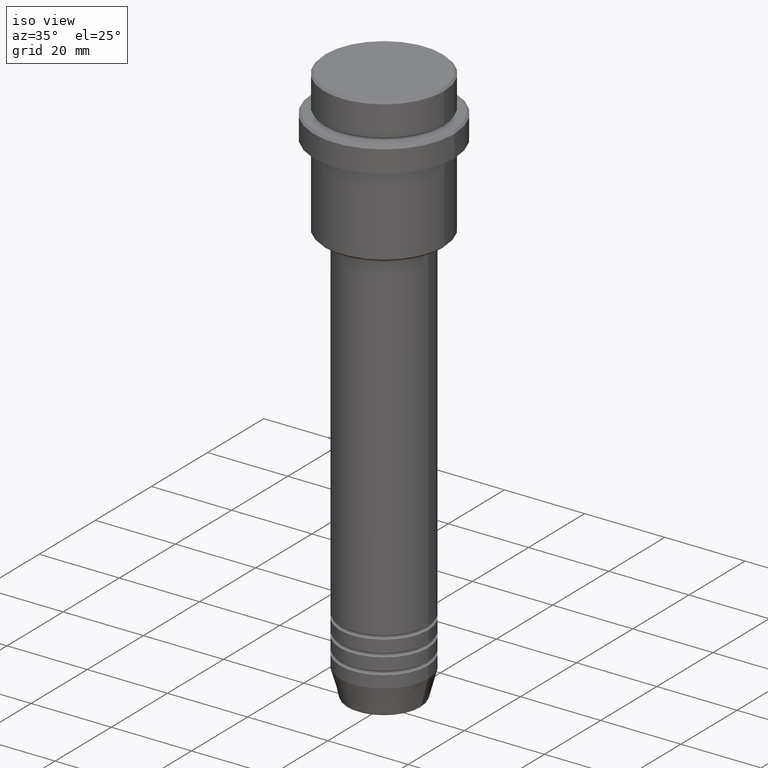
[diagram: clean part render]
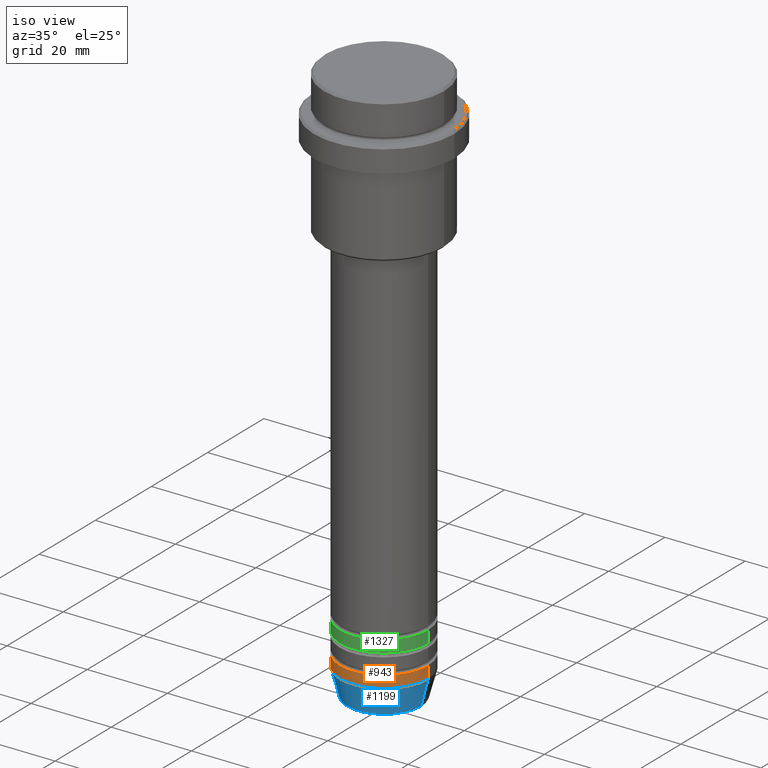
[diagram: same view with three faces highlighted in distinct colors, each labeled with its STEP entity id]
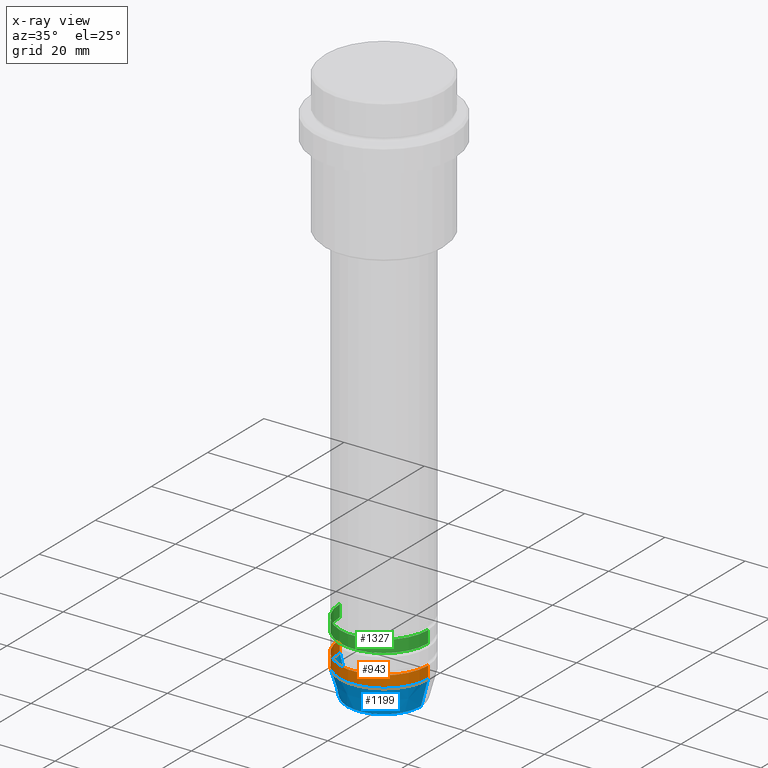
[diagram: x-ray of the same camera — body ghosted, the three highlighted faces saturated]
A machine part, iso view with three faces highlighted in distinct colors.
The next image is the same camera in x-ray (body ghosted, the three faces saturated) — at least one of them is partly hidden behind the body in this view.
Their STEP definitions:

[orange] entity #943 — the highlighted cylindrical surface (partial cylindrical patch) has radius 11 mm, axis along (-0, -0, 1).
#35 = EDGE_LOOP ( 'NONE', ( #1154, #838, #1084, #256 ) ) ;
#37 = DIRECTION ( 'NONE',  ( -0.000000000000000000, -0.000000000000000000, 1.000000000000000000 ) ) ;
#54 = EDGE_CURVE ( 'NONE', #1374, #1285, #913, .T. ) ;
#103 = CARTESIAN_POINT ( 'NONE',  ( -11.00000000000000000, 1.347111479062088405E-15, -130.9999999999999716 ) ) ;
#127 = DIRECTION ( 'NONE',  ( -0.000000000000000000, -0.000000000000000000, 1.000000000000000000 ) ) ;
#175 = DIRECTION ( 'NONE',  ( -0.000000000000000000, -0.000000000000000000, 1.000000000000000000 ) ) ;
#178 = AXIS2_PLACEMENT_3D ( 'NONE', #212, #1319, #443 ) ;
#212 = CARTESIAN_POINT ( 'NONE',  ( 0.000000000000000000, 0.000000000000000000, -133.9999999999999716 ) ) ;
#229 = CIRCLE ( 'NONE', #1005, 11.00000000000000000 ) ;
#251 = CARTESIAN_POINT ( 'NONE',  ( -11.00000000000000000, 1.347111479062088405E-15, 0.000000000000000000 ) ) ;
#256 = ORIENTED_EDGE ( 'NONE', *, *, #1138, .F. ) ;
#266 = DIRECTION ( 'NONE',  ( 1.000000000000000000, 0.000000000000000000, 0.000000000000000000 ) ) ;
#423 = CARTESIAN_POINT ( 'NONE',  ( 11.00000000000000000, 0.000000000000000000, -130.9999999999999716 ) ) ;
#443 = DIRECTION ( 'NONE',  ( 1.000000000000000000, 0.000000000000000000, 0.000000000000000000 ) ) ;
#490 = VERTEX_POINT ( 'NONE', #423 ) ;
#538 = CARTESIAN_POINT ( 'NONE',  ( 11.00000000000000000, 0.000000000000000000, 0.000000000000000000 ) ) ;
#569 = CARTESIAN_POINT ( 'NONE',  ( 0.000000000000000000, 0.000000000000000000, 0.000000000000000000 ) ) ;
#685 = CYLINDRICAL_SURFACE ( 'NONE', #702, 11.00000000000000000 ) ;
#702 = AXIS2_PLACEMENT_3D ( 'NONE', #569, #127, #1334 ) ;
#838 = ORIENTED_EDGE ( 'NONE', *, *, #54, .T. ) ;
#851 = DIRECTION ( 'NONE',  ( -0.000000000000000000, -0.000000000000000000, 1.000000000000000000 ) ) ;
#875 = LINE ( 'NONE', #538, #1369 ) ;
#888 = EDGE_CURVE ( 'NONE', #1285, #490, #875, .T. ) ;
#913 = CIRCLE ( 'NONE', #178, 11.00000000000000000 ) ;
#943 = ADVANCED_FACE ( 'NONE', ( #1001 ), #685, .T. ) ;
#974 = CARTESIAN_POINT ( 'NONE',  ( 11.00000000000000000, 0.000000000000000000, -133.9999999999999716 ) ) ;
#1001 = FACE_OUTER_BOUND ( 'NONE', #35, .T. ) ;
#1005 = AXIS2_PLACEMENT_3D ( 'NONE', #1386, #175, #266 ) ;
#1066 = CARTESIAN_POINT ( 'NONE',  ( -11.00000000000000000, 1.347111479062088405E-15, -133.9999999999999716 ) ) ;
#1068 = EDGE_CURVE ( 'NONE', #1374, #1333, #1231, .T. ) ;
#1084 = ORIENTED_EDGE ( 'NONE', *, *, #888, .T. ) ;
#1138 = EDGE_CURVE ( 'NONE', #1333, #490, #229, .T. ) ;
#1154 = ORIENTED_EDGE ( 'NONE', *, *, #1068, .F. ) ;
#1231 = LINE ( 'NONE', #251, #1281 ) ;
#1281 = VECTOR ( 'NONE', #37, 1000.000000000000000 ) ;
#1285 = VERTEX_POINT ( 'NONE', #974 ) ;
#1319 = DIRECTION ( 'NONE',  ( -0.000000000000000000, -0.000000000000000000, 1.000000000000000000 ) ) ;
#1333 = VERTEX_POINT ( 'NONE', #103 ) ;
#1334 = DIRECTION ( 'NONE',  ( 1.000000000000000000, 0.000000000000000000, 0.000000000000000000 ) ) ;
#1369 = VECTOR ( 'NONE', #851, 1000.000000000000000 ) ;
#1374 = VERTEX_POINT ( 'NONE', #1066 ) ;
#1386 = CARTESIAN_POINT ( 'NONE',  ( 0.000000000000000000, 0.000000000000000000, -130.9999999999999716 ) ) ;

[blue] entity #1199 — the highlighted conical surface has half-angle 15 deg.
#49 = DIRECTION ( 'NONE',  ( 0.2588190451025213501, 0.000000000000000000, 0.9659258262890680902 ) ) ;
#54 = EDGE_CURVE ( 'NONE', #1374, #1285, #913, .T. ) ;
#57 = DIRECTION ( 'NONE',  ( -0.000000000000000000, -0.000000000000000000, 1.000000000000000000 ) ) ;
#73 = CARTESIAN_POINT ( 'NONE',  ( 0.000000000000000000, 0.000000000000000000, -140.6294095225512422 ) ) ;
#79 = DIRECTION ( 'NONE',  ( 1.000000000000000000, 0.000000000000000000, 0.000000000000000000 ) ) ;
#178 = AXIS2_PLACEMENT_3D ( 'NONE', #212, #1319, #443 ) ;
#185 = CARTESIAN_POINT ( 'NONE',  ( 9.223655072137189492, 0.000000000000000000, -140.6294095225512422 ) ) ;
#187 = ORIENTED_EDGE ( 'NONE', *, *, #54, .F. ) ;
#188 = EDGE_CURVE ( 'NONE', #732, #1285, #469, .T. ) ;
#212 = CARTESIAN_POINT ( 'NONE',  ( 0.000000000000000000, 0.000000000000000000, -133.9999999999999716 ) ) ;
#228 = AXIS2_PLACEMENT_3D ( 'NONE', #1159, #57, #79 ) ;
#247 = ORIENTED_EDGE ( 'NONE', *, *, #757, .F. ) ;
#252 = VECTOR ( 'NONE', #49, 1000.000000000000000 ) ;
#368 = CIRCLE ( 'NONE', #800, 9.223655072137189492 ) ;
#395 = FACE_OUTER_BOUND ( 'NONE', #562, .T. ) ;
#443 = DIRECTION ( 'NONE',  ( 1.000000000000000000, 0.000000000000000000, 0.000000000000000000 ) ) ;
#469 = LINE ( 'NONE', #1342, #252 ) ;
#562 = EDGE_LOOP ( 'NONE', ( #247, #1181, #1216, #187 ) ) ;
#604 = CARTESIAN_POINT ( 'NONE',  ( -9.223655072137189492, 1.238341722557647202E-15, -140.6294095225512422 ) ) ;
#679 = VERTEX_POINT ( 'NONE', #604 ) ;
#732 = VERTEX_POINT ( 'NONE', #185 ) ;
#757 = EDGE_CURVE ( 'NONE', #679, #1374, #1367, .T. ) ;
#800 = AXIS2_PLACEMENT_3D ( 'NONE', #73, #1270, #1168 ) ;
#830 = DIRECTION ( 'NONE',  ( -0.2588190451025213501, 3.169619151431772337E-17, 0.9659258262890680902 ) ) ;
#889 = CONICAL_SURFACE ( 'NONE', #228, 11.00000000000000000, 0.2617993877991500740 ) ;
#913 = CIRCLE ( 'NONE', #178, 11.00000000000000000 ) ;
#974 = CARTESIAN_POINT ( 'NONE',  ( 11.00000000000000000, 0.000000000000000000, -133.9999999999999716 ) ) ;
#1066 = CARTESIAN_POINT ( 'NONE',  ( -11.00000000000000000, 1.347111479062088405E-15, -133.9999999999999716 ) ) ;
#1111 = EDGE_CURVE ( 'NONE', #679, #732, #368, .T. ) ;
#1159 = CARTESIAN_POINT ( 'NONE',  ( 0.000000000000000000, 0.000000000000000000, -133.9999999999999716 ) ) ;
#1168 = DIRECTION ( 'NONE',  ( 1.000000000000000000, 0.000000000000000000, 0.000000000000000000 ) ) ;
#1170 = CARTESIAN_POINT ( 'NONE',  ( -11.00000000000000000, 1.347111479062088405E-15, -133.9999999999999716 ) ) ;
#1181 = ORIENTED_EDGE ( 'NONE', *, *, #1111, .T. ) ;
#1199 = ADVANCED_FACE ( 'NONE', ( #395 ), #889, .T. ) ;
#1216 = ORIENTED_EDGE ( 'NONE', *, *, #188, .T. ) ;
#1270 = DIRECTION ( 'NONE',  ( -0.000000000000000000, -0.000000000000000000, 1.000000000000000000 ) ) ;
#1285 = VERTEX_POINT ( 'NONE', #974 ) ;
#1319 = DIRECTION ( 'NONE',  ( -0.000000000000000000, -0.000000000000000000, 1.000000000000000000 ) ) ;
#1342 = CARTESIAN_POINT ( 'NONE',  ( 11.00000000000000000, 0.000000000000000000, -133.9999999999999716 ) ) ;
#1367 = LINE ( 'NONE', #1170, #1416 ) ;
#1374 = VERTEX_POINT ( 'NONE', #1066 ) ;
#1416 = VECTOR ( 'NONE', #830, 1000.000000000000000 ) ;

[green] entity #1327 — the highlighted cylindrical surface (partial cylindrical patch) has radius 11 mm, axis along (-0, -0, 1).
#12 = EDGE_CURVE ( 'NONE', #650, #1329, #273, .T. ) ;
#45 = CARTESIAN_POINT ( 'NONE',  ( 11.00000000000000000, 0.000000000000000000, 0.000000000000000000 ) ) ;
#82 = ORIENTED_EDGE ( 'NONE', *, *, #853, .F. ) ;
#105 = DIRECTION ( 'NONE',  ( -0.000000000000000000, -0.000000000000000000, 1.000000000000000000 ) ) ;
#108 = FACE_OUTER_BOUND ( 'NONE', #975, .T. ) ;
#117 = VECTOR ( 'NONE', #105, 1000.000000000000000 ) ;
#121 = CARTESIAN_POINT ( 'NONE',  ( 11.00000000000000000, 0.000000000000000000, -122.9999999999998721 ) ) ;
#197 = ORIENTED_EDGE ( 'NONE', *, *, #1201, .F. ) ;
#273 = CIRCLE ( 'NONE', #1417, 11.00000000000000000 ) ;
#340 = DIRECTION ( 'NONE',  ( 1.000000000000000000, 0.000000000000000000, 0.000000000000000000 ) ) ;
#349 = DIRECTION ( 'NONE',  ( -0.000000000000000000, -0.000000000000000000, 1.000000000000000000 ) ) ;
#377 = CARTESIAN_POINT ( 'NONE',  ( -11.00000000000000000, 1.347111479062088405E-15, -125.9999999999998863 ) ) ;
#384 = CARTESIAN_POINT ( 'NONE',  ( 0.000000000000000000, 0.000000000000000000, -122.9999999999998721 ) ) ;
#392 = VERTEX_POINT ( 'NONE', #121 ) ;
#456 = CIRCLE ( 'NONE', #1025, 11.00000000000000000 ) ;
#533 = DIRECTION ( 'NONE',  ( -0.000000000000000000, -0.000000000000000000, 1.000000000000000000 ) ) ;
#547 = DIRECTION ( 'NONE',  ( -0.000000000000000000, -0.000000000000000000, 1.000000000000000000 ) ) ;
#578 = ORIENTED_EDGE ( 'NONE', *, *, #643, .T. ) ;
#643 = EDGE_CURVE ( 'NONE', #1329, #392, #884, .T. ) ;
#650 = VERTEX_POINT ( 'NONE', #377 ) ;
#753 = CARTESIAN_POINT ( 'NONE',  ( 11.00000000000000000, 0.000000000000000000, -125.9999999999998863 ) ) ;
#853 = EDGE_CURVE ( 'NONE', #650, #1385, #1291, .T. ) ;
#854 = CYLINDRICAL_SURFACE ( 'NONE', #867, 11.00000000000000000 ) ;
#862 = CARTESIAN_POINT ( 'NONE',  ( 0.000000000000000000, 0.000000000000000000, 0.000000000000000000 ) ) ;
#867 = AXIS2_PLACEMENT_3D ( 'NONE', #862, #547, #1093 ) ;
#884 = LINE ( 'NONE', #45, #1263 ) ;
#950 = DIRECTION ( 'NONE',  ( 1.000000000000000000, 0.000000000000000000, 0.000000000000000000 ) ) ;
#967 = CARTESIAN_POINT ( 'NONE',  ( -11.00000000000000000, 1.347111479062088405E-15, -122.9999999999998721 ) ) ;
#975 = EDGE_LOOP ( 'NONE', ( #82, #1250, #578, #197 ) ) ;
#1025 = AXIS2_PLACEMENT_3D ( 'NONE', #384, #1381, #950 ) ;
#1091 = CARTESIAN_POINT ( 'NONE',  ( 0.000000000000000000, 0.000000000000000000, -125.9999999999998863 ) ) ;
#1093 = DIRECTION ( 'NONE',  ( 1.000000000000000000, 0.000000000000000000, 0.000000000000000000 ) ) ;
#1184 = CARTESIAN_POINT ( 'NONE',  ( -11.00000000000000000, 1.347111479062088405E-15, 0.000000000000000000 ) ) ;
#1201 = EDGE_CURVE ( 'NONE', #1385, #392, #456, .T. ) ;
#1250 = ORIENTED_EDGE ( 'NONE', *, *, #12, .T. ) ;
#1263 = VECTOR ( 'NONE', #349, 1000.000000000000000 ) ;
#1291 = LINE ( 'NONE', #1184, #117 ) ;
#1327 = ADVANCED_FACE ( 'NONE', ( #108 ), #854, .T. ) ;
#1329 = VERTEX_POINT ( 'NONE', #753 ) ;
#1381 = DIRECTION ( 'NONE',  ( -0.000000000000000000, -0.000000000000000000, 1.000000000000000000 ) ) ;
#1385 = VERTEX_POINT ( 'NONE', #967 ) ;
#1417 = AXIS2_PLACEMENT_3D ( 'NONE', #1091, #533, #340 ) ;